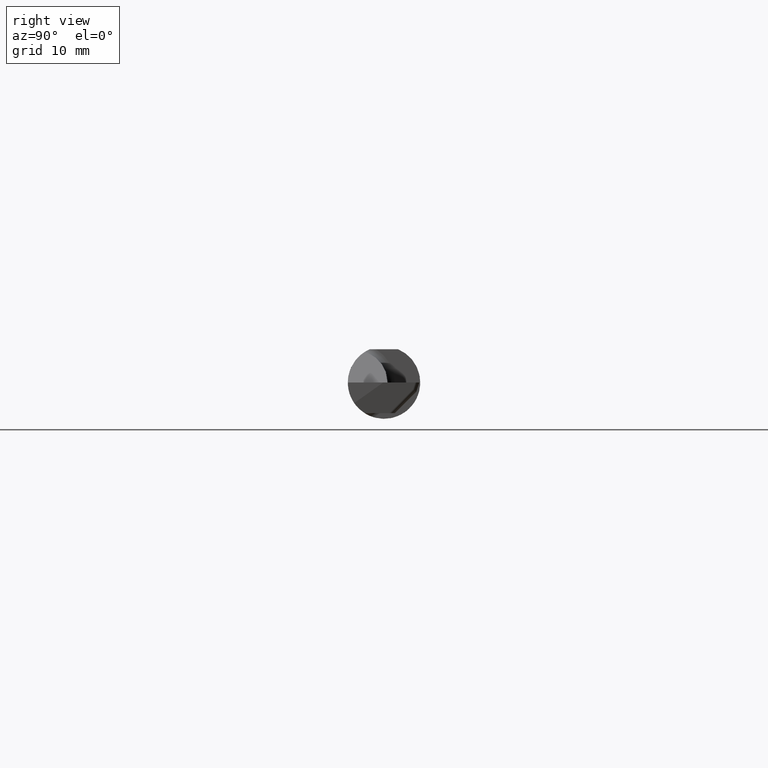
[diagram: clean part render]
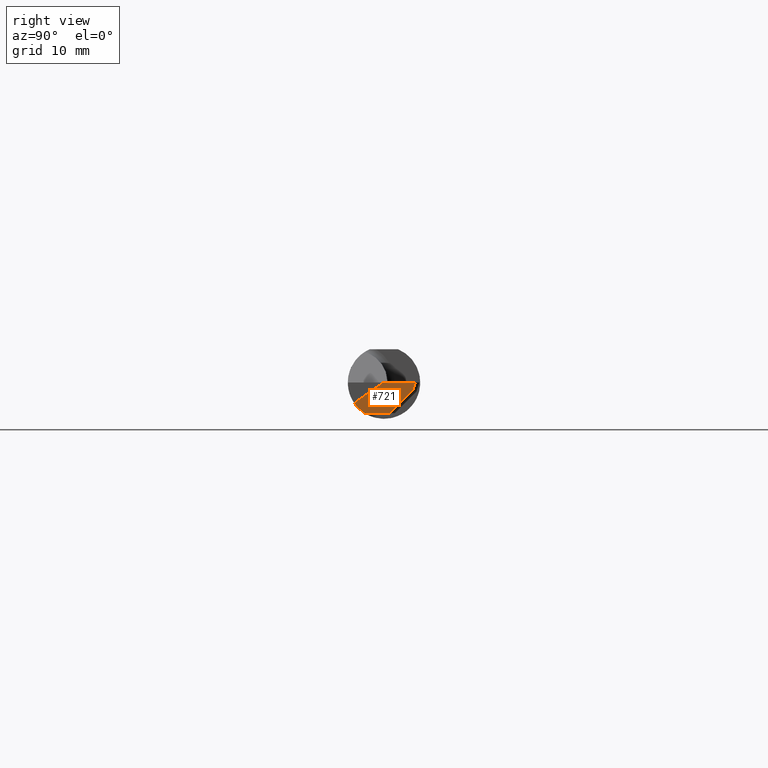
[diagram: same view with one face highlighted and labeled with its STEP entity id]
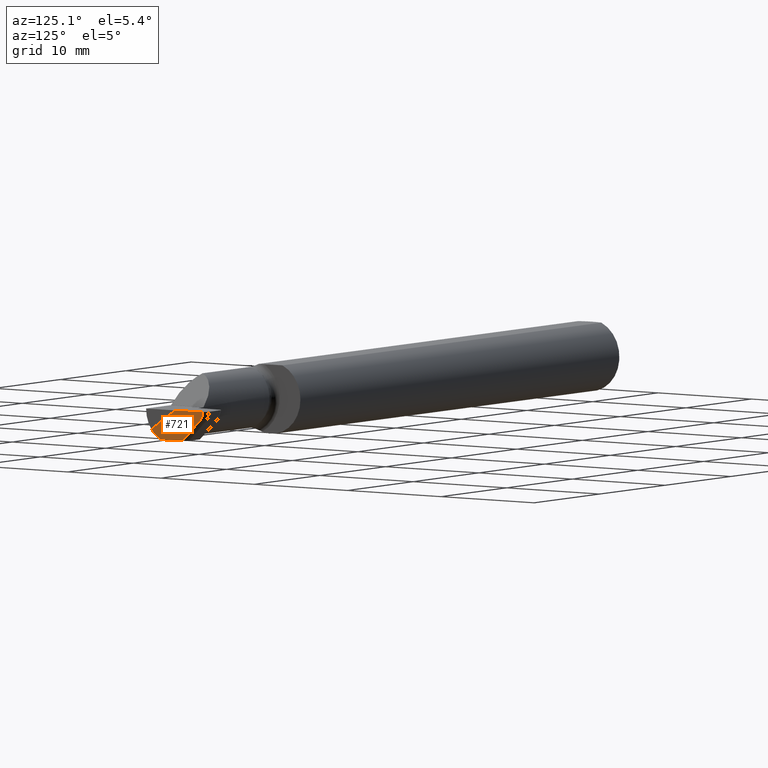
[diagram: same view with one face highlighted and labeled with its STEP entity id]
A machine part, right view. The second image highlights one B-rep face of the part: STEP entity #721.
A second angle (auxiliary view) of the same face is appended — the face is thin or edge-on in the first view.
In plain terms, the highlighted planar face has unit normal (-0.9888, -0.0865, 0.1219).
Its self-contained STEP definition (entity closure, byte-faithful):
#1 = CARTESIAN_POINT ( 'NONE',  ( 2.492585572526551108, -0.06674575881451196013, -0.1055107870327721409 ) ) ;
#25 = DIRECTION ( 'NONE',  ( 0.08982109674372397434, 0.3077679217474500462, 0.9472122660328096133 ) ) ;
#39 = VERTEX_POINT ( 'NONE', #795 ) ;
#75 = LINE ( 'NONE', #204, #401 ) ;
#76 = LINE ( 'NONE', #733, #867 ) ;
#79 = ORIENTED_EDGE ( 'NONE', *, *, #212, .T. ) ;
#102 = DIRECTION ( 'NONE',  ( 0.000000000000000000, -0.8154497401906256604, -0.5788278856646776882 ) ) ;
#129 = PLANE ( 'NONE',  #831 ) ;
#149 = DIRECTION ( 'NONE',  ( 0.08715574274765255924, -0.9961946980917459893, 0.000000000000000000 ) ) ;
#191 = FACE_OUTER_BOUND ( 'NONE', #642, .T. ) ;
#201 = DIRECTION ( 'NONE',  ( 0.08715574274765255924, -0.9961946980917459893, 0.000000000000000000 ) ) ;
#204 = CARTESIAN_POINT ( 'NONE',  ( 2.488809237271968122, 0.1233638167132798807, -0.001204708112474771765 ) ) ;
#212 = EDGE_CURVE ( 'NONE', #428, #422, #75, .T. ) ;
#228 = LINE ( 'NONE', #685, #380 ) ;
#234 = CARTESIAN_POINT ( 'NONE',  ( 2.500000000000000000, -0.1027548813330047828, -0.07091513845604555111 ) ) ;
#275 = DIRECTION ( 'NONE',  ( -0.9887692138764512251, -0.08650609705762361823, 0.1218693434051477675 ) ) ;
#342 = ORIENTED_EDGE ( 'NONE', *, *, #789, .F. ) ;
#359 = CARTESIAN_POINT ( 'NONE',  ( 2.500000000000000000, -0.002850000000000199596, 0.000000000000000000 ) ) ;
#380 = VECTOR ( 'NONE', #102, 39.37007874015748854 ) ;
#401 = VECTOR ( 'NONE', #473, 39.37007874015748854 ) ;
#402 = EDGE_CURVE ( 'NONE', #606, #39, #662, .T. ) ;
#412 = VECTOR ( 'NONE', #25, 39.37007874015748143 ) ;
#415 = CARTESIAN_POINT ( 'NONE',  ( 2.490652205030475130, 0.1095508184452585881, 0.003943109996817499401 ) ) ;
#416 = CARTESIAN_POINT ( 'NONE',  ( 2.487988828088624427, 0.1004248779263808428, -0.02414364689937435055 ) ) ;
#422 = VERTEX_POINT ( 'NONE', #416 ) ;
#423 = CARTESIAN_POINT ( 'NONE',  ( 2.494944802869536904, -0.08100450677091575180, -0.09649075241015640791 ) ) ;
#428 = VERTEX_POINT ( 'NONE', #496 ) ;
#432 = EDGE_CURVE ( 'NONE', #841, #39, #228, .T. ) ;
#448 = CARTESIAN_POINT ( 'NONE',  ( 2.490278292574739094, 0.1082696243428797889, 0.000000000000000000 ) ) ;
#465 = CARTESIAN_POINT ( 'NONE',  ( 2.489063917059260334, 0.1221499999999998004, 0.000000000000000000 ) ) ;
#467 = ORIENTED_EDGE ( 'NONE', *, *, #432, .T. ) ;
#473 = DIRECTION ( 'NONE',  ( 0.02528153024484438086, 0.7068807693764396216, 0.7068807693764567190 ) ) ;
#480 = VECTOR ( 'NONE', #149, 39.37007874015748143 ) ;
#494 = LINE ( 'NONE', #415, #412 ) ;
#496 = CARTESIAN_POINT ( 'NONE',  ( 2.485078739282510885, 0.01905773779298498144, -0.1055107870327721409 ) ) ;
#534 = DIRECTION ( 'NONE',  ( 0.1223279114424238589, 0.000000000000000000, 0.9924897390311572254 ) ) ;
#548 = ORIENTED_EDGE ( 'NONE', *, *, #687, .T. ) ;
#556 = VERTEX_POINT ( 'NONE', #448 ) ;
#606 = VERTEX_POINT ( 'NONE', #1 ) ;
#607 = LINE ( 'NONE', #767, #480 ) ;
#609 = CARTESIAN_POINT ( 'NONE',  ( 2.497450015745279028, -0.09317139594753261200, -0.08480145278864946456 ) ) ;
#642 = EDGE_LOOP ( 'NONE', ( #342, #79, #713, #548, #467, #825 ) ) ;
#662 =( BOUNDED_CURVE ( )  B_SPLINE_CURVE ( 3, ( #837, #423, #609, #234 ),
 .UNSPECIFIED., .F., .F. ) 
 B_SPLINE_CURVE_WITH_KNOTS ( ( 4, 4 ),
 ( 1.181333927195137967, 1.584009842849273486 ),
 .UNSPECIFIED. ) 
 CURVE ( )  GEOMETRIC_REPRESENTATION_ITEM ( )  RATIONAL_B_SPLINE_CURVE ( ( 1.000000000000000000, 0.9865332596737929061, 0.9865332596737929061, 1.000000000000000000 ) ) 
 REPRESENTATION_ITEM ( '' )  );
#685 = CARTESIAN_POINT ( 'NONE',  ( 2.500000000000000000, -0.0009548689054857433444, 0.001345214389594105850 ) ) ;
#687 = EDGE_CURVE ( 'NONE', #556, #841, #76, .T. ) ;
#713 = ORIENTED_EDGE ( 'NONE', *, *, #842, .T. ) ;
#721 = ADVANCED_FACE ( 'NONE', ( #191 ), #129, .F. ) ;
#733 = CARTESIAN_POINT ( 'NONE',  ( 2.489063917059260334, 0.1221499999999998004, 0.000000000000000000 ) ) ;
#767 = CARTESIAN_POINT ( 'NONE',  ( 2.481051614048140674, 0.06508798985161054484, -0.1055107870327721409 ) ) ;
#789 = EDGE_CURVE ( 'NONE', #428, #606, #607, .T. ) ;
#795 = CARTESIAN_POINT ( 'NONE',  ( 2.500000000000000000, -0.1027548813330047828, -0.07091513845604555111 ) ) ;
#825 = ORIENTED_EDGE ( 'NONE', *, *, #402, .F. ) ;
#831 = AXIS2_PLACEMENT_3D ( 'NONE', #465, #275, #534 ) ;
#837 = CARTESIAN_POINT ( 'NONE',  ( 2.492585572526551108, -0.06674575881451196013, -0.1055107870327721409 ) ) ;
#841 = VERTEX_POINT ( 'NONE', #359 ) ;
#842 = EDGE_CURVE ( 'NONE', #422, #556, #494, .T. ) ;
#867 = VECTOR ( 'NONE', #201, 39.37007874015748143 ) ;